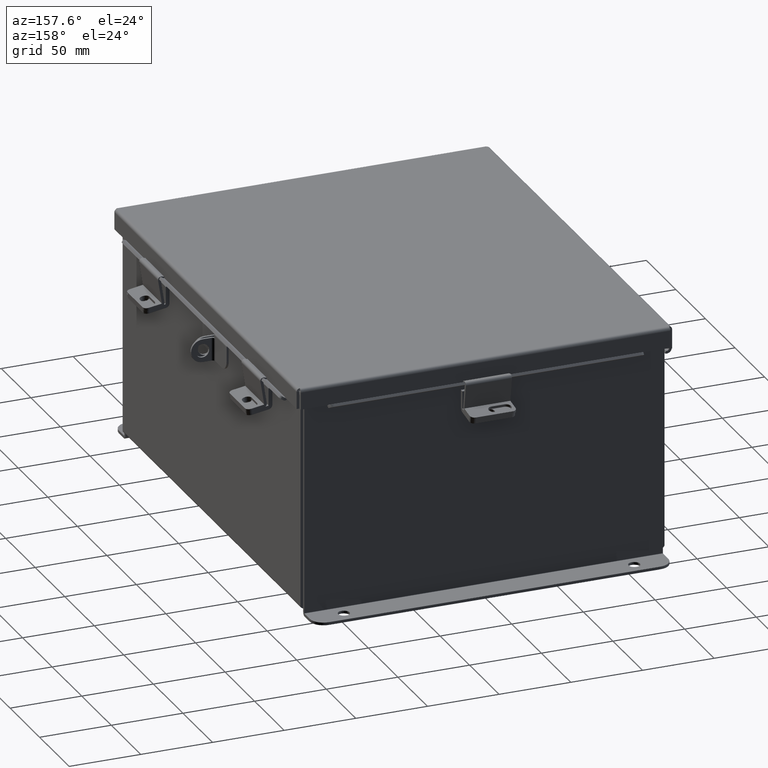
[diagram: clean part render]
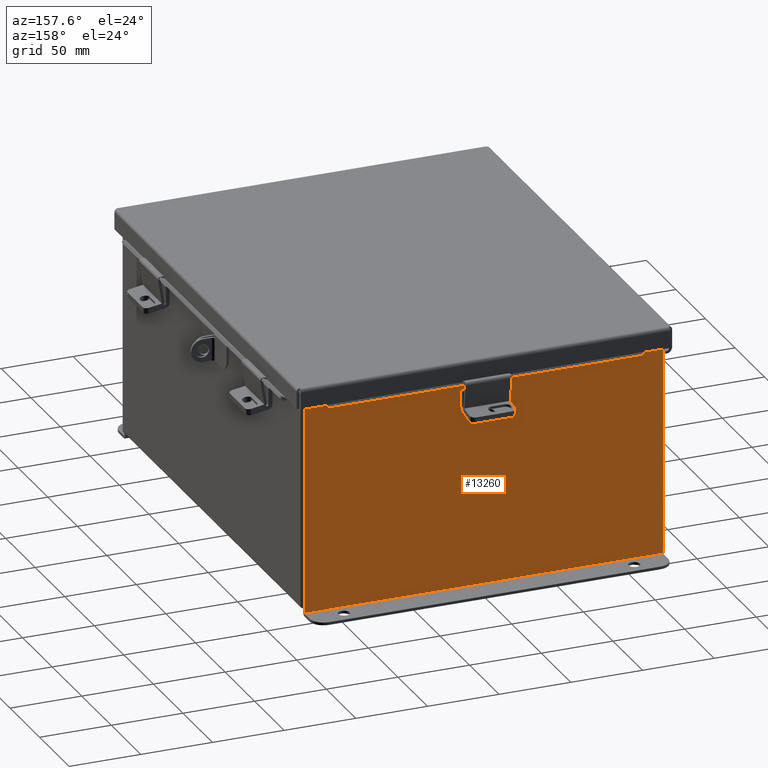
[diagram: same view with one face highlighted and labeled with its STEP entity id]
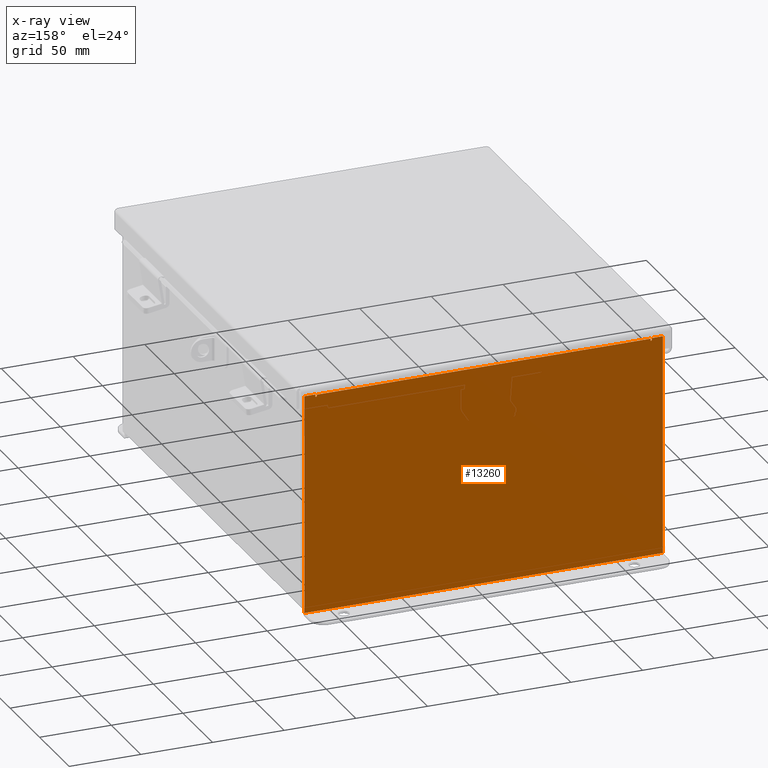
[diagram: x-ray of the same camera — body ghosted, the highlighted face saturated]
A machine part, auxiliary view. The second image highlights one B-rep face of the part: STEP entity #13260.
The next image is the same camera in x-ray: the body ghosted, the highlighted face saturated — about 0% of this face is hidden behind the body in this view.
In plain terms, the highlighted planar face has unit normal (0, -1, 0).
Its self-contained STEP definition (entity closure, byte-faithful):
#99 = CARTESIAN_POINT ( 'NONE',  ( -4.582299999999997400, 1.092739197465705300E-015, 2.912299999999999200 ) ) ;
#123 = ORIENTED_EDGE ( 'NONE', *, *, #1342, .F. ) ;
#150 = VERTEX_POINT ( 'NONE', #16138 ) ;
#248 = VECTOR ( 'NONE', #16280, 39.37007874015748100 ) ;
#294 = CARTESIAN_POINT ( 'NONE',  ( 4.925300000000000000, 0.0000000000000000000, 2.925299999999999600 ) ) ;
#330 = CARTESIAN_POINT ( 'NONE',  ( -4.925300000000000000, 0.0000000000000000000, 2.925299999999999600 ) ) ;
#378 = VECTOR ( 'NONE', #900, 39.37007874015748100 ) ;
#428 = VERTEX_POINT ( 'NONE', #14047 ) ;
#789 = CARTESIAN_POINT ( 'NONE',  ( 0.0000000000000000000, 0.0000000000000000000, 0.0000000000000000000 ) ) ;
#872 = CARTESIAN_POINT ( 'NONE',  ( -4.925300000000000000, 0.0000000000000000000, -3.099299999999999900 ) ) ;
#900 = DIRECTION ( 'NONE',  ( 0.0000000000000000000, 0.0000000000000000000, 1.000000000000000000 ) ) ;
#1121 = CIRCLE ( 'NONE', #9442, 0.01867500000000003900 ) ;
#1126 = EDGE_CURVE ( 'NONE', #15715, #15136, #5587, .T. ) ;
#1342 = EDGE_CURVE ( 'NONE', #1465, #10829, #17117, .T. ) ;
#1452 = EDGE_CURVE ( 'NONE', #12712, #428, #7707, .T. ) ;
#1465 = VERTEX_POINT ( 'NONE', #2485 ) ;
#2111 = CARTESIAN_POINT ( 'NONE',  ( -4.619649999999997400, 0.0000000000000000000, 2.925299999999999600 ) ) ;
#2174 = DIRECTION ( 'NONE',  ( 0.0000000000000000000, -0.0000000000000000000, -1.000000000000000000 ) ) ;
#2279 = VERTEX_POINT ( 'NONE', #16978 ) ;
#2386 = LINE ( 'NONE', #14356, #9214 ) ;
#2485 = CARTESIAN_POINT ( 'NONE',  ( -4.925299999999999100, 0.0000000000000000000, -3.099299999999999900 ) ) ;
#2723 = VERTEX_POINT ( 'NONE', #99 ) ;
#3421 = ORIENTED_EDGE ( 'NONE', *, *, #15917, .F. ) ;
#3824 = EDGE_LOOP ( 'NONE', ( #3421, #16410, #6443, #13746, #13275, #9324, #8892, #10695, #4965, #123, #17274, #4468 ) ) ;
#4109 = VECTOR ( 'NONE', #13331, 39.37007874015748100 ) ;
#4467 = DIRECTION ( 'NONE',  ( 0.0000000000000000000, 0.0000000000000000000, -1.000000000000000000 ) ) ;
#4468 = ORIENTED_EDGE ( 'NONE', *, *, #1126, .T. ) ;
#4677 = DIRECTION ( 'NONE',  ( 0.0000000000000000000, 0.0000000000000000000, -1.000000000000000000 ) ) ;
#4965 = ORIENTED_EDGE ( 'NONE', *, *, #16923, .T. ) ;
#5209 = CARTESIAN_POINT ( 'NONE',  ( 4.925300000000000000, 0.0000000000000000000, -3.099299999999999900 ) ) ;
#5429 = CARTESIAN_POINT ( 'NONE',  ( 4.619650000000000900, 0.0000000000000000000, 2.925299999999999600 ) ) ;
#5587 = LINE ( 'NONE', #330, #16052 ) ;
#5683 = EDGE_CURVE ( 'NONE', #428, #150, #12996, .T. ) ;
#6224 = VECTOR ( 'NONE', #10415, 39.37007874015748100 ) ;
#6323 = VECTOR ( 'NONE', #4467, 39.37007874015748100 ) ;
#6427 = DIRECTION ( 'NONE',  ( -0.0000000000000000000, 1.000000000000000000, -0.0000000000000000000 ) ) ;
#6443 = ORIENTED_EDGE ( 'NONE', *, *, #14477, .F. ) ;
#6618 = CARTESIAN_POINT ( 'NONE',  ( -4.600974999999997400, 0.0000000000000000000, 2.874949999999999200 ) ) ;
#6649 = VERTEX_POINT ( 'NONE', #17543 ) ;
#6749 = VERTEX_POINT ( 'NONE', #16508 ) ;
#6774 = LINE ( 'NONE', #7963, #17252 ) ;
#7147 = DIRECTION ( 'NONE',  ( 1.000000000000000000, 0.0000000000000000000, 0.0000000000000000000 ) ) ;
#7438 = EDGE_CURVE ( 'NONE', #150, #6749, #8512, .T. ) ;
#7707 = LINE ( 'NONE', #14741, #4109 ) ;
#7919 = CARTESIAN_POINT ( 'NONE',  ( -4.925300000000000000, 0.0000000000000000000, 2.925299999999999600 ) ) ;
#7963 = CARTESIAN_POINT ( 'NONE',  ( -4.619649999999997400, 0.0000000000000000000, 0.0000000000000000000 ) ) ;
#7992 = DIRECTION ( 'NONE',  ( 0.0000000000000000000, 0.0000000000000000000, -1.000000000000000000 ) ) ;
#8209 = AXIS2_PLACEMENT_3D ( 'NONE', #789, #10324, #2174 ) ;
#8413 = CARTESIAN_POINT ( 'NONE',  ( -4.619649999999997400, 0.0000000000000000000, 2.874949999999999200 ) ) ;
#8512 = LINE ( 'NONE', #9081, #378 ) ;
#8892 = ORIENTED_EDGE ( 'NONE', *, *, #1452, .F. ) ;
#8981 = VECTOR ( 'NONE', #16083, 39.37007874015748100 ) ;
#8983 = PLANE ( 'NONE',  #8209 ) ;
#9081 = CARTESIAN_POINT ( 'NONE',  ( 4.582300000000000000, 0.0000000000000000000, 0.0000000000000000000 ) ) ;
#9214 = VECTOR ( 'NONE', #15706, 39.37007874015748100 ) ;
#9324 = ORIENTED_EDGE ( 'NONE', *, *, #5683, .F. ) ;
#9404 = CARTESIAN_POINT ( 'NONE',  ( -4.925300000000000000, 0.0000000000000000000, 2.925299999999999600 ) ) ;
#9442 = AXIS2_PLACEMENT_3D ( 'NONE', #6618, #16171, #7992 ) ;
#10324 = DIRECTION ( 'NONE',  ( 0.0000000000000000000, -1.000000000000000000, 0.0000000000000000000 ) ) ;
#10415 = DIRECTION ( 'NONE',  ( 1.000000000000000000, -0.0000000000000000000, -0.0000000000000000000 ) ) ;
#10447 = VECTOR ( 'NONE', #4677, 39.37007874015748100 ) ;
#10541 = VERTEX_POINT ( 'NONE', #8413 ) ;
#10695 = ORIENTED_EDGE ( 'NONE', *, *, #13381, .T. ) ;
#10797 = LINE ( 'NONE', #294, #6323 ) ;
#10829 = VERTEX_POINT ( 'NONE', #5209 ) ;
#10858 = EDGE_CURVE ( 'NONE', #6649, #10541, #1121, .T. ) ;
#11126 = LINE ( 'NONE', #9404, #248 ) ;
#11380 = EDGE_CURVE ( 'NONE', #1465, #15715, #11126, .T. ) ;
#11799 = EDGE_CURVE ( 'NONE', #2723, #6749, #2386, .T. ) ;
#12712 = VERTEX_POINT ( 'NONE', #5429 ) ;
#12996 = CIRCLE ( 'NONE', #16821, 0.01867500000000003900 ) ;
#13260 = ADVANCED_FACE ( 'NONE', ( #14343 ), #8983, .F. ) ;
#13275 = ORIENTED_EDGE ( 'NONE', *, *, #7438, .F. ) ;
#13331 = DIRECTION ( 'NONE',  ( -2.170286390199978800E-014, 0.0000000000000000000, -1.000000000000000000 ) ) ;
#13381 = EDGE_CURVE ( 'NONE', #12712, #2279, #16257, .T. ) ;
#13666 = LINE ( 'NONE', #14199, #10447 ) ;
#13746 = ORIENTED_EDGE ( 'NONE', *, *, #11799, .T. ) ;
#14047 = CARTESIAN_POINT ( 'NONE',  ( 4.619650000000000000, 0.0000000000000000000, 2.874949999999999200 ) ) ;
#14199 = CARTESIAN_POINT ( 'NONE',  ( -4.582299999999997400, 0.0000000000000000000, 0.0000000000000000000 ) ) ;
#14343 = FACE_OUTER_BOUND ( 'NONE', #3824, .T. ) ;
#14356 = CARTESIAN_POINT ( 'NONE',  ( -4.582300000000000000, 1.092739197465705300E-015, 2.912299999999999200 ) ) ;
#14477 = EDGE_CURVE ( 'NONE', #2723, #6649, #13666, .T. ) ;
#14603 = CARTESIAN_POINT ( 'NONE',  ( 4.600975000000000000, 0.0000000000000000000, 2.874949999999999200 ) ) ;
#14741 = CARTESIAN_POINT ( 'NONE',  ( 4.619649999999937900, 0.0000000000000000000, -1.005320061668448800E-013 ) ) ;
#15136 = VERTEX_POINT ( 'NONE', #2111 ) ;
#15602 = CARTESIAN_POINT ( 'NONE',  ( -4.925300000000000000, 0.0000000000000000000, 2.925299999999999600 ) ) ;
#15706 = DIRECTION ( 'NONE',  ( 1.000000000000000000, 0.0000000000000000000, 0.0000000000000000000 ) ) ;
#15715 = VERTEX_POINT ( 'NONE', #15602 ) ;
#15917 = EDGE_CURVE ( 'NONE', #10541, #15136, #6774, .T. ) ;
#15975 = DIRECTION ( 'NONE',  ( 0.0000000000000000000, 0.0000000000000000000, -1.000000000000000000 ) ) ;
#16052 = VECTOR ( 'NONE', #7147, 39.37007874015748100 ) ;
#16083 = DIRECTION ( 'NONE',  ( 1.000000000000000000, 0.0000000000000000000, 0.0000000000000000000 ) ) ;
#16138 = CARTESIAN_POINT ( 'NONE',  ( 4.582300000000000000, 0.0000000000000000000, 2.874949999999999200 ) ) ;
#16171 = DIRECTION ( 'NONE',  ( -0.0000000000000000000, 1.000000000000000000, -0.0000000000000000000 ) ) ;
#16257 = LINE ( 'NONE', #7919, #8981 ) ;
#16280 = DIRECTION ( 'NONE',  ( -0.0000000000000000000, -0.0000000000000000000, 1.000000000000000000 ) ) ;
#16410 = ORIENTED_EDGE ( 'NONE', *, *, #10858, .F. ) ;
#16508 = CARTESIAN_POINT ( 'NONE',  ( 4.582300000000000000, 0.0000000000000000000, 2.912299999999999200 ) ) ;
#16821 = AXIS2_PLACEMENT_3D ( 'NONE', #14603, #6427, #15975 ) ;
#16923 = EDGE_CURVE ( 'NONE', #2279, #10829, #10797, .T. ) ;
#16978 = CARTESIAN_POINT ( 'NONE',  ( 4.925300000000000000, 0.0000000000000000000, 2.925299999999999600 ) ) ;
#17117 = LINE ( 'NONE', #872, #6224 ) ;
#17252 = VECTOR ( 'NONE', #17440, 39.37007874015748100 ) ;
#17274 = ORIENTED_EDGE ( 'NONE', *, *, #11380, .T. ) ;
#17440 = DIRECTION ( 'NONE',  ( 0.0000000000000000000, 0.0000000000000000000, 1.000000000000000000 ) ) ;
#17543 = CARTESIAN_POINT ( 'NONE',  ( -4.582299999999997400, 0.0000000000000000000, 2.874949999999999200 ) ) ;